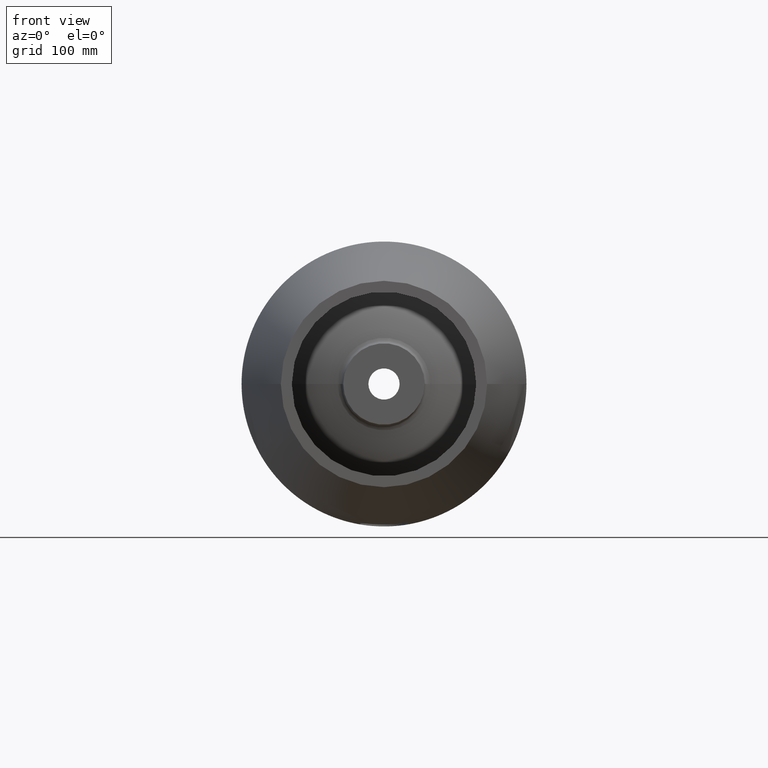
[diagram: clean part render]
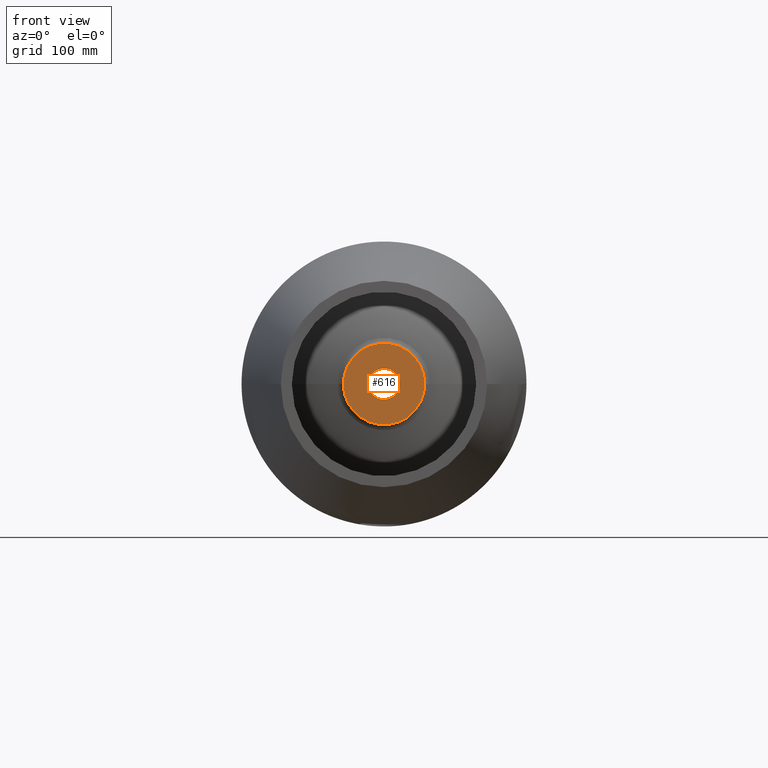
[diagram: same view with one face highlighted and labeled with its STEP entity id]
A machine part, front view. The second image highlights one B-rep face of the part: STEP entity #616.
In plain terms, the highlighted planar face has unit normal (-0, 1, 0).
Its self-contained STEP definition (entity closure, byte-faithful):
#29 = DIRECTION ( 'NONE',  ( -1.000000000000000000, -1.246832498358330099E-16, 0.000000000000000000 ) ) ;
#91 = EDGE_CURVE ( 'NONE', #949, #611, #661, .T. ) ;
#130 = CARTESIAN_POINT ( 'NONE',  ( -8.827574088376975840E-14, 708.0000000000000000, 0.000000000000000000 ) ) ;
#152 = EDGE_LOOP ( 'NONE', ( #344, #966 ) ) ;
#163 = CIRCLE ( 'NONE', #424, 59.99999999999999289 ) ;
#166 = CARTESIAN_POINT ( 'NONE',  ( -8.827574088376975840E-14, 708.0000000000000000, 0.000000000000000000 ) ) ;
#167 = CARTESIAN_POINT ( 'NONE',  ( 59.99999999999990763, 708.0000000000000000, 7.347880794884118356E-15 ) ) ;
#222 = FACE_BOUND ( 'NONE', #152, .T. ) ;
#234 = DIRECTION ( 'NONE',  ( -1.246832498358330099E-16, 1.000000000000000000, -0.000000000000000000 ) ) ;
#240 = CARTESIAN_POINT ( 'NONE',  ( 22.99999999999991118, 708.0000000000000000, 2.816687638038912746E-15 ) ) ;
#251 = CARTESIAN_POINT ( 'NONE',  ( -8.827574088376975840E-14, 708.0000000000000000, 0.000000000000000000 ) ) ;
#310 = EDGE_CURVE ( 'NONE', #386, #850, #765, .T. ) ;
#322 = DIRECTION ( 'NONE',  ( -1.246832498358330099E-16, 1.000000000000000000, -0.000000000000000000 ) ) ;
#340 = DIRECTION ( 'NONE',  ( -1.000000000000000000, 0.000000000000000000, 0.000000000000000000 ) ) ;
#344 = ORIENTED_EDGE ( 'NONE', *, *, #310, .T. ) ;
#354 = AXIS2_PLACEMENT_3D ( 'NONE', #251, #415, #340 ) ;
#358 = EDGE_CURVE ( 'NONE', #850, #386, #799, .T. ) ;
#369 = AXIS2_PLACEMENT_3D ( 'NONE', #859, #587, #29 ) ;
#386 = VERTEX_POINT ( 'NONE', #492 ) ;
#415 = DIRECTION ( 'NONE',  ( -1.246832498358330099E-16, 1.000000000000000000, -0.000000000000000000 ) ) ;
#424 = AXIS2_PLACEMENT_3D ( 'NONE', #166, #322, #640 ) ;
#436 = DIRECTION ( 'NONE',  ( -1.000000000000000000, 0.000000000000000000, 0.000000000000000000 ) ) ;
#492 = CARTESIAN_POINT ( 'NONE',  ( -23.00000000000008527, 708.0000000000000000, 0.000000000000000000 ) ) ;
#502 = DIRECTION ( 'NONE',  ( -1.000000000000000000, 0.000000000000000000, 0.000000000000000000 ) ) ;
#584 = ORIENTED_EDGE ( 'NONE', *, *, #827, .F. ) ;
#587 = DIRECTION ( 'NONE',  ( -1.246832498358330099E-16, 1.000000000000000000, 0.000000000000000000 ) ) ;
#611 = VERTEX_POINT ( 'NONE', #167 ) ;
#616 = ADVANCED_FACE ( 'NONE', ( #887, #222 ), #695, .F. ) ;
#627 = ORIENTED_EDGE ( 'NONE', *, *, #91, .F. ) ;
#640 = DIRECTION ( 'NONE',  ( -1.000000000000000000, 0.000000000000000000, 0.000000000000000000 ) ) ;
#661 = CIRCLE ( 'NONE', #836, 59.99999999999999289 ) ;
#695 = PLANE ( 'NONE',  #369 ) ;
#722 = EDGE_LOOP ( 'NONE', ( #627, #584 ) ) ;
#765 = CIRCLE ( 'NONE', #992, 23.00000000000000000 ) ;
#799 = CIRCLE ( 'NONE', #354, 23.00000000000000000 ) ;
#827 = EDGE_CURVE ( 'NONE', #611, #949, #163, .T. ) ;
#836 = AXIS2_PLACEMENT_3D ( 'NONE', #130, #858, #436 ) ;
#850 = VERTEX_POINT ( 'NONE', #240 ) ;
#858 = DIRECTION ( 'NONE',  ( -1.246832498358330099E-16, 1.000000000000000000, -0.000000000000000000 ) ) ;
#859 = CARTESIAN_POINT ( 'NONE',  ( -6.451553807694286215E-31, 708.0000000000000000, 0.000000000000000000 ) ) ;
#874 = CARTESIAN_POINT ( 'NONE',  ( -8.827574088376975840E-14, 708.0000000000000000, 0.000000000000000000 ) ) ;
#887 = FACE_OUTER_BOUND ( 'NONE', #722, .T. ) ;
#949 = VERTEX_POINT ( 'NONE', #981 ) ;
#966 = ORIENTED_EDGE ( 'NONE', *, *, #358, .T. ) ;
#981 = CARTESIAN_POINT ( 'NONE',  ( -60.00000000000007816, 708.0000000000000000, 0.000000000000000000 ) ) ;
#992 = AXIS2_PLACEMENT_3D ( 'NONE', #874, #234, #502 ) ;